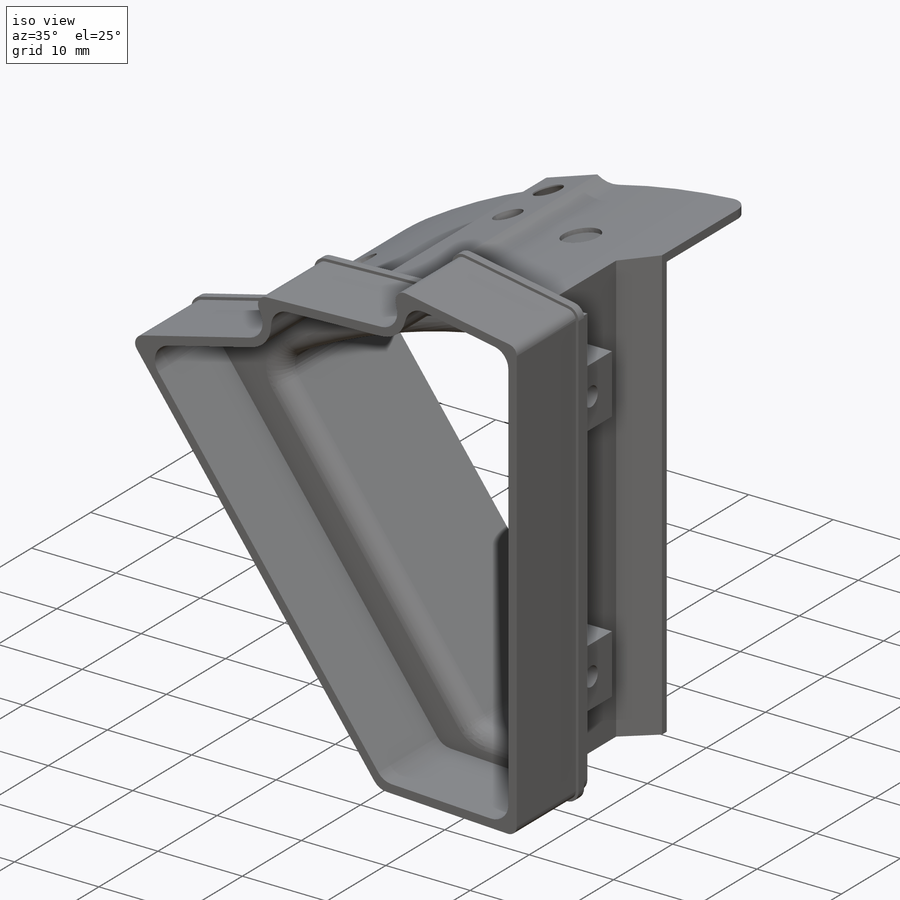
[diagram: iso view]
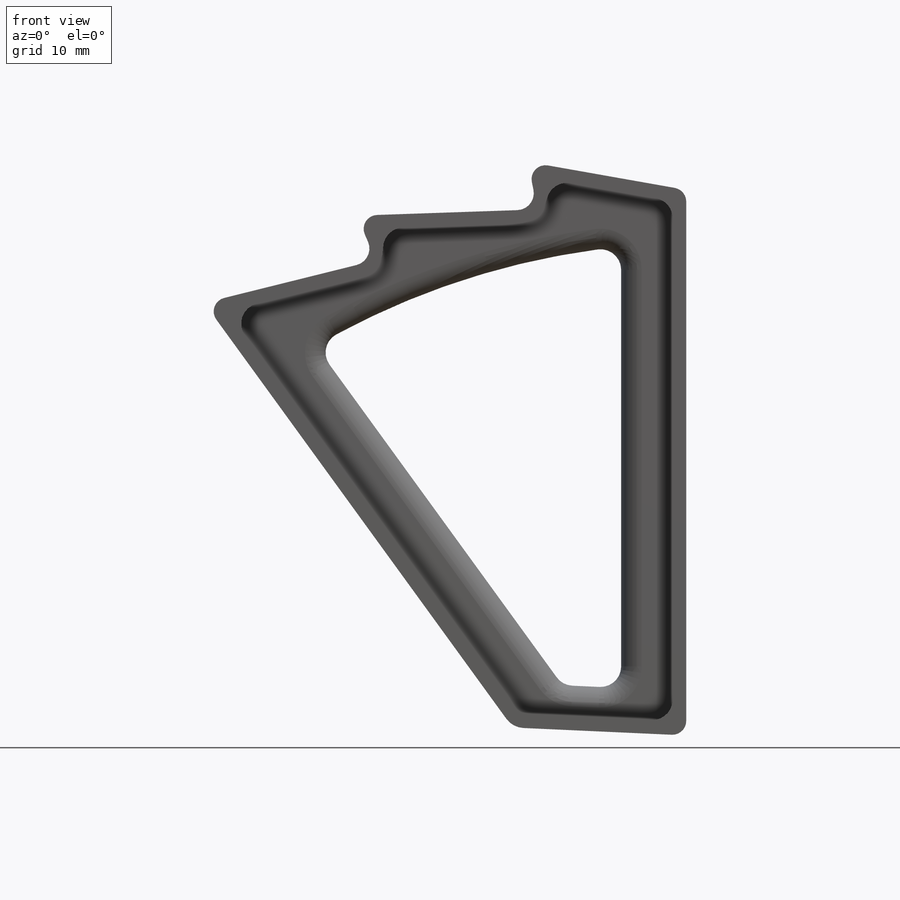
[diagram: front view]
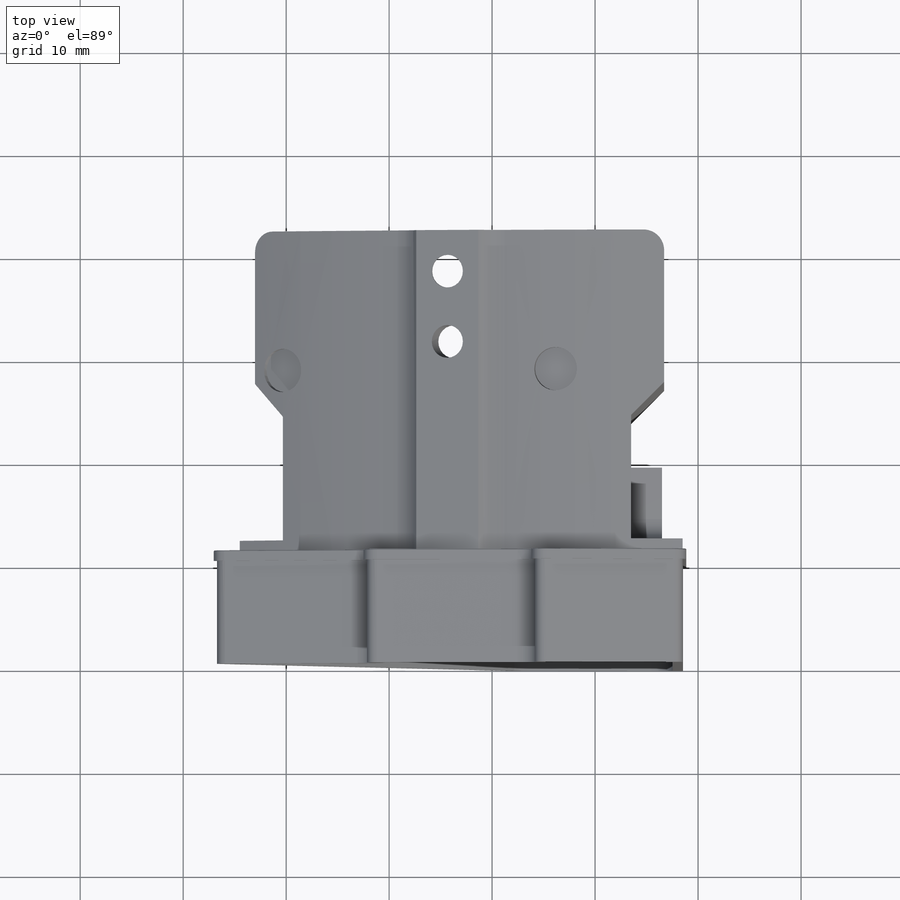
[diagram: top view]
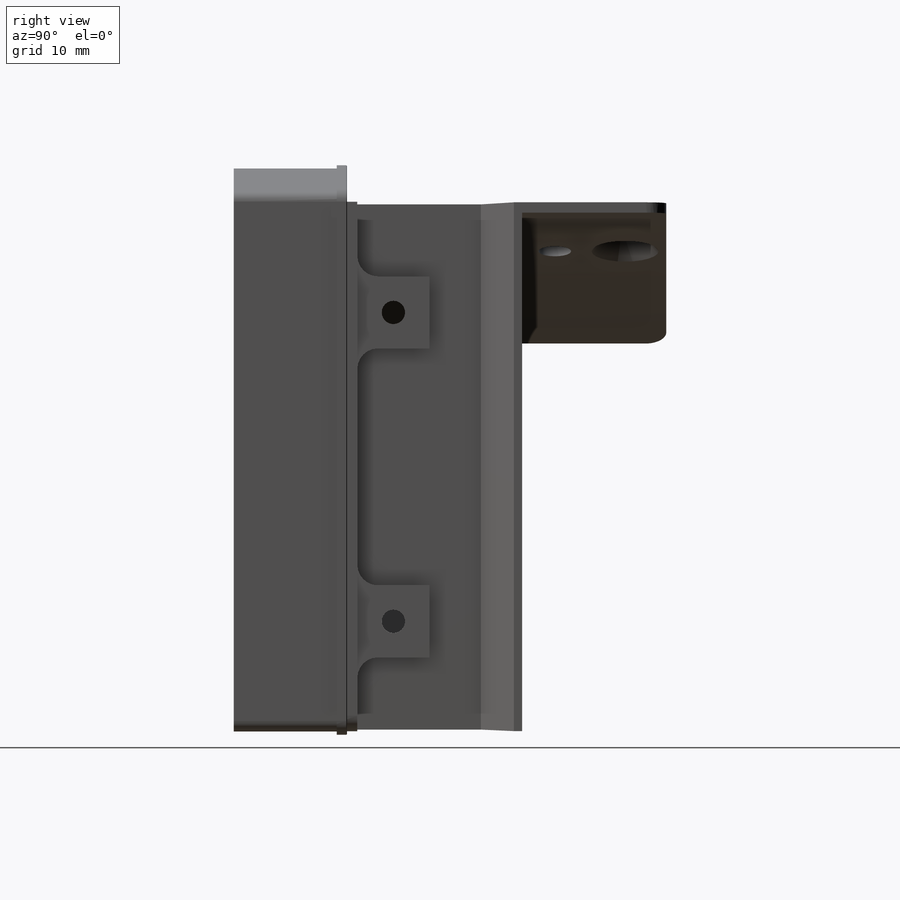
[diagram: right view]
SOLIDWORKS PART (.sldprt)
format: sldprt  version: not decoded by parser v0  size: 968,192 bytes
history: native  units: mm
features: sketch x24, plane x12, cut_extrude x10, extrude x7, fillet x7, material x1, revolve x1, mirror x1, cut_revolve x1, pattern_circular x1 (+17 scaffold rows collapsed)
feature tree (82):
  scaffold x17  (default folders/planes/origin — collapsed)
  material  "6061 Alloy"
  sketch  "Sketch1"  dims[c1.D3=4.0mm c1.D9=1.23mm c1.D10=~2.049207mm c1.D11=1.03mm c1.D12=1.23mm c1.D13=1.23mm c1.D15=1.77mm c1.D17=1.77mm c1.D18=1.23mm c1.D21=2.0mm c1.D1=0.2mm c1.D4=0.2mm c1.D5=0.2mm c1.D6=0.2mm c1.D7=0.2mm c1.D8=0.2mm c2.D9=0.2mm c2.D10=0.2mm c2.D11=0.2mm c2.D12=0.2mm c2.D13=0.2mm c2.D14=0.2mm c2.D15=0.2mm c2.D16=0.2mm c2.D17=0.2mm c2.D18=0.2mm c2.D19=1.0mm c2.D20=1.0mm c2.D1=0.05mm c2.D2=1.0mm]
  extrude  "Extrude1"  Depth=10mm
  sketch  "sets center radius line"  dims[D1=~64.503343mm]
  sketch  "Sketch2"  dims[c1.D2=2.0mm c1.D5=4.0mm c1.D6=~77.744826mm c2.D5=2.0mm c2.D8=2.0mm c2.D6=73.8mm c2.D3=6.32mm c2.D4=6.32mm c3.D6=3.5mm c3.D7=3.0mm c3.D1=0.32mm]
  extrude  "indent of air path"  Depth=1mm
  sketch  "Sketch3"  dims[c1.D2=0.75mm c1.D3=1.5mm c1.D1=~86.504892mm c2.D2=~11.370116mm c3.D2=12.0deg c3.D4=~11.370116mm c4.D4=12.0deg c4.D5=~96.960571mm c5.D5=18.0deg c5.D6=~133.215703mm c5.D7=~133.215703mm c6.D7=18.0deg c6.D1=2.5mm c6.D6=16.5mm c7.D1=4.0mm c7.D2=2.94mm c7.D4=1.5mm c8.D2=1.5mm c8.D1=3.0mm]
  extrude  "Extrude3"  Depth=17mm
  plane  "Plane1"
  plane  "Plane5"
  sketch  "Sketch22"  dims[c1.D1=1.0mm c1.D2=2.0mm c1.D3=2.0mm c1.D4=1.0mm c2.D3=25.0mm c2.D5=12.5mm c2.D1=1.0mm c2.D2=1.0mm c3.D3=25.0mm c3.D4=7.0mm c3.D5=14.0mm c4.D3=~6.113932mm c5.D3=25.0deg c5.D6=1.0mm c5.D7=25.0mm c5.D2=0.0mm]
  revolve  "Revolve1"  Angle=36deg
  sketch  "Sketch23"
  cut_extrude  "Extrude15"  [1 undecoded]
  sketch  "Sketch6"  dims[c1.D4=0.5mm c1.D1=~3.309179mm c2.D1=45.0deg c2.D2=5.0mm c2.D3=1.0mm c2.D4=5.0mm c2.D5=9.0mm c3.D1=2.0mm c3.D6=~4.87807mm c4.D6=~55.084441deg c5.D6=6.0mm c6.D6=45.0deg c6.D1=12.0mm c6.D4=0.8mm]
  cut_extrude  "Extrude6"  [1 undecoded]
  sketch  "Sketch24"  dims[D1=1.0mm]
  plane  "Plane6"
  sketch  "Sketch45"  dims[D1=6.35mm]
  extrude  "Extrude29"  [1 undecoded]
  fillet  "Fillet13"  Radius=3.175mm
  sketch  "Sketch46"
  plane  "Plane7"
  sketch  "Sketch47"
  extrude  "Extrude30"  [1 undecoded]
  sketch  "Sketch26"  dims[D1=3.175mm D2=3.175mm]
  cut_extrude  "Extrude17"  [1 undecoded]
  plane  "bisector"
  sketch  "pickup height"  dims[D1=4.5mm]
  plane  "pickup plane"
  plane  "Plane2"
  sketch  "Sketch8"  dims[c1.D4=0.5mm c1.D1=~5.475418mm c2.D1=45.0deg c2.D2=5.0mm c2.D3=4.0mm c2.D4=2.0mm c2.D5=1.0mm c2.D6=9.0mm c3.D1=~4.951498mm c4.D1=45.0deg c4.D3=12.0mm c4.D4=0.8mm]
  cut_extrude  "Extrude8"  [1 undecoded]
  fillet  "Fillet3"  Radius=0.5mm
  fillet  "Fillet9"  Radius=0.1mm
  fillet  "Fillet11"  Radius=2mm
  sketch  "Sketch38"  dims[D3=2.2606mm D1=11.0mm D2=8.5mm]
  extrude  "pickup 2"  Depth=4mm
  sketch  "Sketch39"  dims[D1=2.2606mm]
  cut_extrude  "Extrude25"  [1 undecoded]
  sketch  "Sketch40"  dims[c1.D1=~1.483513mm c2.D1=45.0deg c2.D2=4.5mm]
  cut_extrude  "Extrude26"  [1 undecoded]
  plane  "plenum hole plane"  Offset=4mm
  sketch  "Sketch42"  dims[c1.D1=~105.035143mm c2.D1=12.0deg]
  plane  "plenum center hole"
  sketch  "Sketch43"  dims[D1=3.175mm]
  cut_extrude  "Extrude27"  [1 undecoded]
  plane  "plenum side hole plane"
  sketch  "Sketch44"  dims[D1=6.0mm D2=7.0mm]
  cut_extrude  "Extrude28"  [1 undecoded]
  mirror  "Mirror1"
  fillet  "Fillet12"  Radius=2mm
  sketch  "Sketch48"  dims[c1.D1=~1.241737mm c2.D1=49.0deg c2.D2=3.2549mm]
  cut_revolve  "Cut-Revolve1"  Angle=360deg
  sketch  "Sketch51"  dims[c1.D2=2.2606mm c1.D1=7.0mm c1.D3=~2.413673mm c1.D4=~1.849219mm c2.D1=7.0mm c2.D5=30.0mm]
  extrude  "Extrude31"  Depth=3mm
  sketch  "Sketch54"
  cut_extrude  "Extrude34"  [1 undecoded]
  fillet  "Fillet14"  Radius=2mm
  fillet  "Fillet15"  Radius=2mm
  plane  "Plane8"
  plane  "Plane9"
  sketch  "Sketch56"  dims[D1=4.2mm D2=18.5mm]
  cut_extrude  "Cut-Extrude1"  Depth=0.5mm
  pattern_circular  "CirPattern1"  Count=2 Angle=21deg
decode coverage: 36 of 52 modeling features carry decoded parameters
note: ~ marks probable driven/reference dimensions
note: 11 parameter values undecoded
summary: no parameter record found for 11 features
note: suppression state not decoded; provenance and decode notes live in map.json
